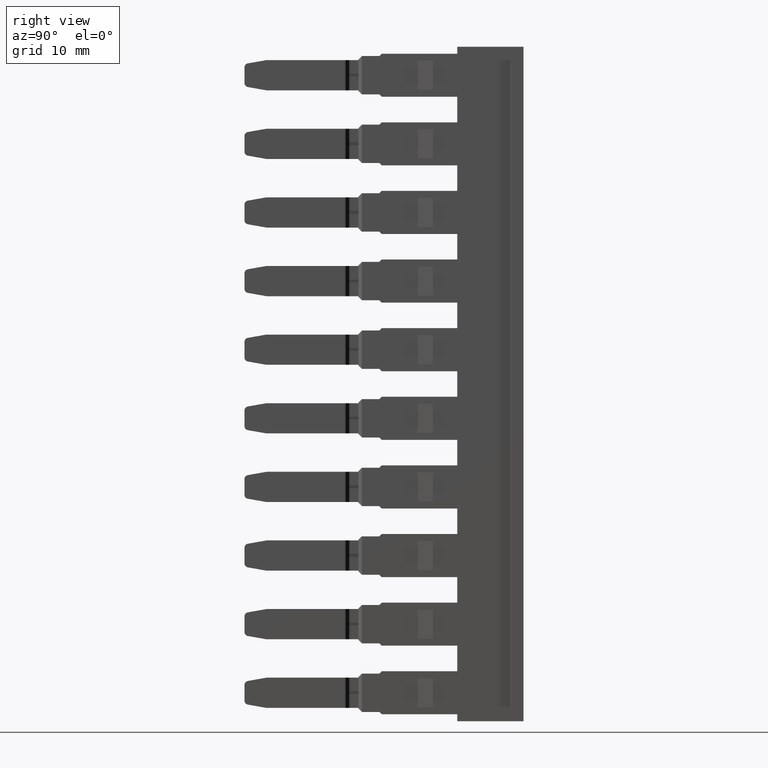
[diagram: clean part render]
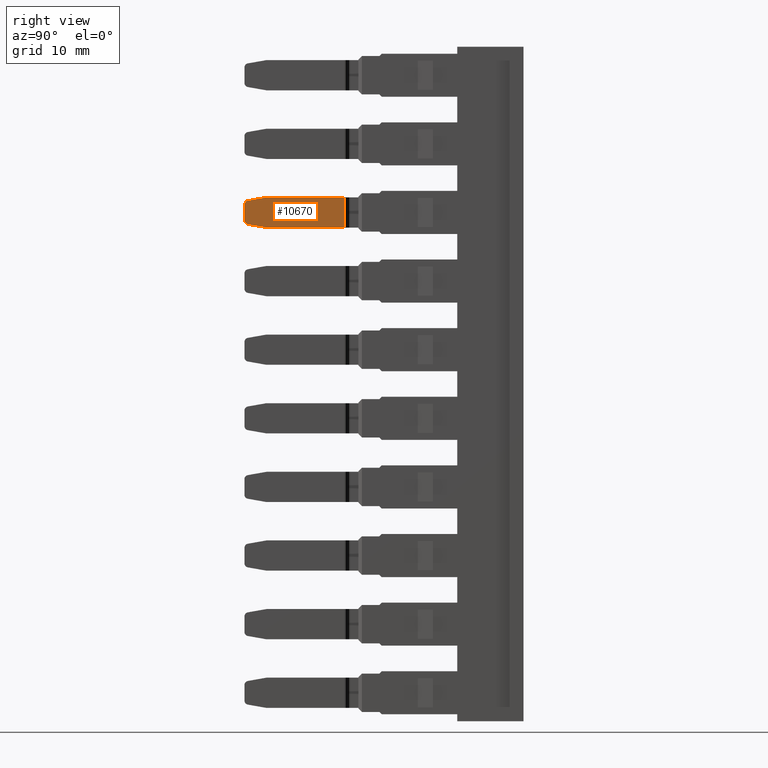
[diagram: same view with one face highlighted and labeled with its STEP entity id]
A machine part, right view. The second image highlights one B-rep face of the part: STEP entity #10670.
In plain terms, the highlighted planar face has unit normal (1, -0, 0).
Its self-contained STEP definition (entity closure, byte-faithful):
#1699 = VECTOR ( 'NONE', #4891, 1000.000000000000000 ) ;
#1793 = CIRCLE ( 'NONE', #1819, 0.3499999999999892100 ) ;
#1799 = VECTOR ( 'NONE', #5085, 1000.000000000000000 ) ;
#1819 = AXIS2_PLACEMENT_3D ( 'NONE', #5105, #5099, #5114 ) ;
#1837 = VECTOR ( 'NONE', #5294, 1000.000000000000000 ) ;
#1842 = CIRCLE ( 'NONE', #1859, 0.3499999999999753300 ) ;
#1849 = VECTOR ( 'NONE', #5234, 1000.000000000000100 ) ;
#1851 = VECTOR ( 'NONE', #5183, 1000.000000000000000 ) ;
#1856 = VECTOR ( 'NONE', #5212, 999.9999999999998900 ) ;
#1859 = AXIS2_PLACEMENT_3D ( 'NONE', #5272, #5273, #5274 ) ;
#2367 = EDGE_CURVE ( 'NONE', #7475, #7455, #4915, .T. ) ;
#2416 = EDGE_CURVE ( 'NONE', #7475, #7453, #5029, .T. ) ;
#2419 = EDGE_CURVE ( 'NONE', #7517, #7493, #1793, .T. ) ;
#2459 = EDGE_CURVE ( 'NONE', #7515, #7455, #5204, .T. ) ;
#2466 = EDGE_CURVE ( 'NONE', #7453, #7509, #5196, .T. ) ;
#2467 = EDGE_CURVE ( 'NONE', #7517, #7515, #5223, .T. ) ;
#2479 = EDGE_CURVE ( 'NONE', #7489, #7493, #5240, .T. ) ;
#2490 = EDGE_CURVE ( 'NONE', #7489, #7509, #1842, .T. ) ;
#4657 = ORIENTED_EDGE ( 'NONE', *, *, #2459, .T. ) ;
#4658 = ORIENTED_EDGE ( 'NONE', *, *, #2419, .F. ) ;
#4677 = ORIENTED_EDGE ( 'NONE', *, *, #2467, .T. ) ;
#4691 = ORIENTED_EDGE ( 'NONE', *, *, #2416, .T. ) ;
#4708 = ORIENTED_EDGE ( 'NONE', *, *, #2466, .T. ) ;
#4733 = ORIENTED_EDGE ( 'NONE', *, *, #2479, .T. ) ;
#4734 = ORIENTED_EDGE ( 'NONE', *, *, #2367, .F. ) ;
#4757 = ORIENTED_EDGE ( 'NONE', *, *, #2490, .F. ) ;
#4891 = DIRECTION ( 'NONE',  ( -0.0000000000000000000, -0.0000000000000000000, -1.000000000000000000 ) ) ;
#4915 = LINE ( 'NONE', #4918, #1699 ) ;
#4918 = CARTESIAN_POINT ( 'NONE',  ( 1459.217905001598200, 994.2959515111284600, -92.59999999999007500 ) ) ;
#5029 = LINE ( 'NONE', #5042, #1799 ) ;
#5042 = CARTESIAN_POINT ( 'NONE',  ( 1459.217905001598200, 988.9878926471629900, -90.00000000020817500 ) ) ;
#5085 = DIRECTION ( 'NONE',  ( -0.0000000000000000000, -1.000000000000000000, -0.0000000000000000000 ) ) ;
#5099 = DIRECTION ( 'NONE',  ( -1.000000000000000000, -5.817690394031370500E-016, -1.715124499442885300E-015 ) ) ;
#5105 = CARTESIAN_POINT ( 'NONE',  ( 1459.217905001598200, 986.0446795375319200, -91.97192042437015400 ) ) ;
#5114 = DIRECTION ( 'NONE',  ( 0.0000000000000000000, 0.0000000000000000000, -1.000000000000000000 ) ) ;
#5180 = CARTESIAN_POINT ( 'NONE',  ( 1459.217905001598200, 988.9878926471629900, -92.59999999998862600 ) ) ;
#5183 = DIRECTION ( 'NONE',  ( 0.0000000000000000000, 1.000000000000000000, 0.0000000000000000000 ) ) ;
#5196 = LINE ( 'NONE', #5233, #1856 ) ;
#5204 = LINE ( 'NONE', #5180, #1851 ) ;
#5211 = CARTESIAN_POINT ( 'NONE',  ( 1459.217905001598200, 987.5911261469179900, -92.59999999999006100 ) ) ;
#5212 = DIRECTION ( 'NONE',  ( -0.0000000000000000000, -0.9848077530122177900, -0.1736481776668759300 ) ) ;
#5223 = LINE ( 'NONE', #5211, #1849 ) ;
#5233 = CARTESIAN_POINT ( 'NONE',  ( 1459.217905001598200, 987.5951899124220300, -90.00000000026969400 ) ) ;
#5234 = DIRECTION ( 'NONE',  ( -0.0000000000000000000, 0.9848077530122103500, -0.1736481776669172600 ) ) ;
#5240 = LINE ( 'NONE', #5261, #1837 ) ;
#5261 = CARTESIAN_POINT ( 'NONE',  ( 1459.217905001598200, 985.6946795375320100, -91.97192042437016800 ) ) ;
#5272 = CARTESIAN_POINT ( 'NONE',  ( 1459.217905001598200, 986.0446795375319200, -90.62879612739111200 ) ) ;
#5273 = DIRECTION ( 'NONE',  ( -1.000000000000000000, -5.817690394031370500E-016, -1.715124499442885300E-015 ) ) ;
#5274 = DIRECTION ( 'NONE',  ( 0.0000000000000000000, 0.0000000000000000000, -1.000000000000000000 ) ) ;
#5294 = DIRECTION ( 'NONE',  ( -0.0000000000000000000, -0.0000000000000000000, -1.000000000000000000 ) ) ;
#6824 = PLANE ( 'NONE',  #13640 ) ;
#6832 = DIRECTION ( 'NONE',  ( 0.0000000000000000000, 0.0000000000000000000, -1.000000000000000000 ) ) ;
#6854 = DIRECTION ( 'NONE',  ( 1.000000000000000000, -0.0000000000000000000, 0.0000000000000000000 ) ) ;
#6861 = CARTESIAN_POINT ( 'NONE',  ( 1459.217905001598200, 988.9878926471629900, -107.7791513848264200 ) ) ;
#6873 = FACE_OUTER_BOUND ( 'NONE', #8104, .T. ) ;
#7453 = VERTEX_POINT ( 'NONE', #8955 ) ;
#7455 = VERTEX_POINT ( 'NONE', #8970 ) ;
#7475 = VERTEX_POINT ( 'NONE', #8959 ) ;
#7489 = VERTEX_POINT ( 'NONE', #8990 ) ;
#7493 = VERTEX_POINT ( 'NONE', #8985 ) ;
#7509 = VERTEX_POINT ( 'NONE', #8979 ) ;
#7515 = VERTEX_POINT ( 'NONE', #8991 ) ;
#7517 = VERTEX_POINT ( 'NONE', #9023 ) ;
#8104 = EDGE_LOOP ( 'NONE', ( #4691, #4708, #4757, #4733, #4658, #4677, #4657, #4734 ) ) ;
#8955 = CARTESIAN_POINT ( 'NONE',  ( 1459.217905001598200, 987.5951899123661000, -90.00000000015427300 ) ) ;
#8959 = CARTESIAN_POINT ( 'NONE',  ( 1459.217905001598200, 994.2959515111284600, -90.00000000013770300 ) ) ;
#8970 = CARTESIAN_POINT ( 'NONE',  ( 1459.217905001598200, 994.2959515111284600, -92.59999999998935000 ) ) ;
#8979 = CARTESIAN_POINT ( 'NONE',  ( 1459.217905001598200, 985.9839026753486500, -90.28411341383683500 ) ) ;
#8985 = CARTESIAN_POINT ( 'NONE',  ( 1459.217905001598200, 985.6946795375320100, -91.97192042437015400 ) ) ;
#8990 = CARTESIAN_POINT ( 'NONE',  ( 1459.217905001598200, 985.6946795375320100, -90.62879612739111200 ) ) ;
#8991 = CARTESIAN_POINT ( 'NONE',  ( 1459.217905001598200, 987.5911261469179900, -92.59999999998812800 ) ) ;
#9023 = CARTESIAN_POINT ( 'NONE',  ( 1459.217905001598200, 985.9839026753485300, -92.31660313792446000 ) ) ;
#10670 = ADVANCED_FACE ( 'NONE', ( #6873 ), #6824, .T. ) ;
#13640 = AXIS2_PLACEMENT_3D ( 'NONE', #6861, #6854, #6832 ) ;